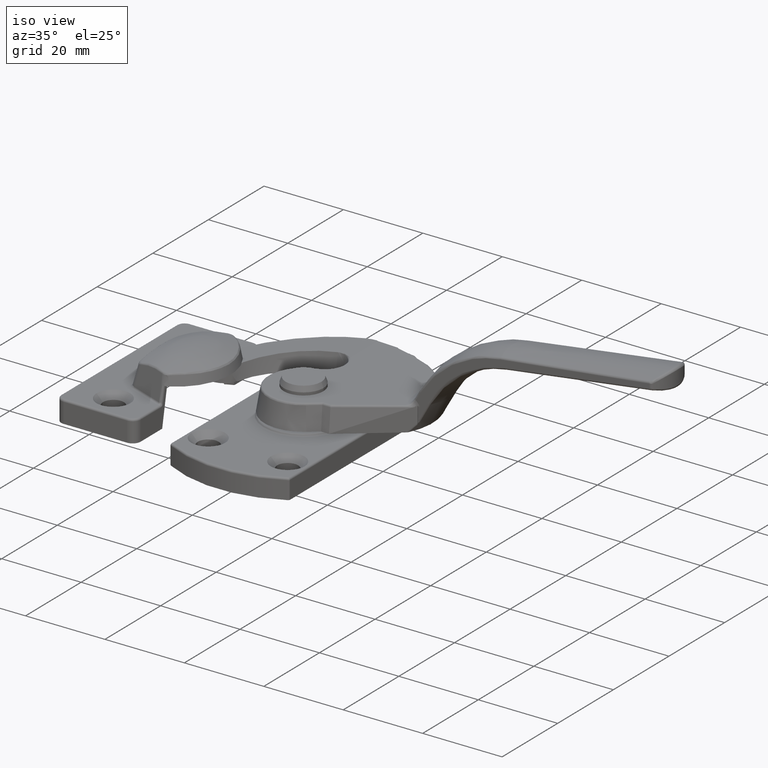
[diagram: clean part render]
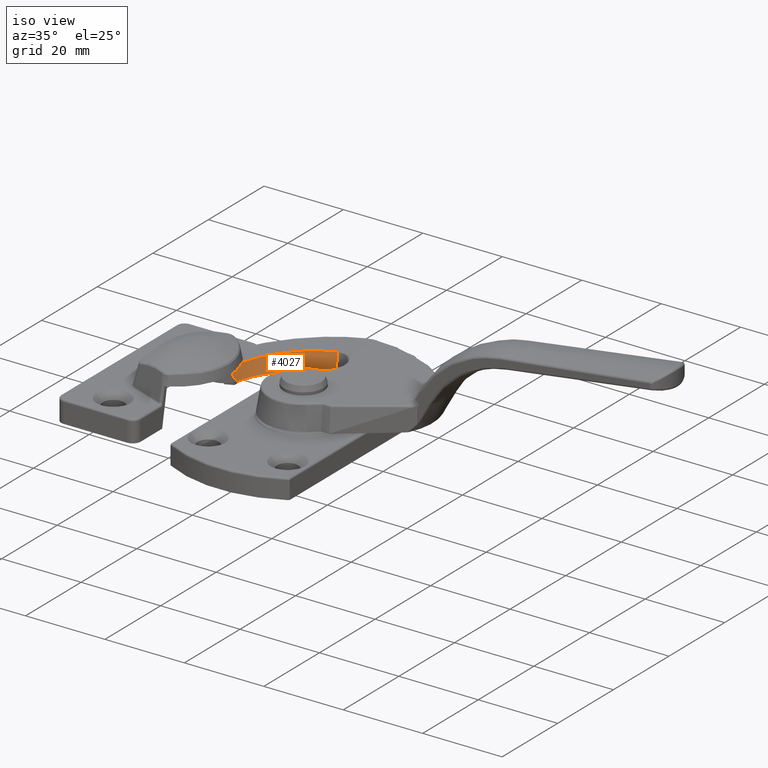
[diagram: same view with one face highlighted and labeled with its STEP entity id]
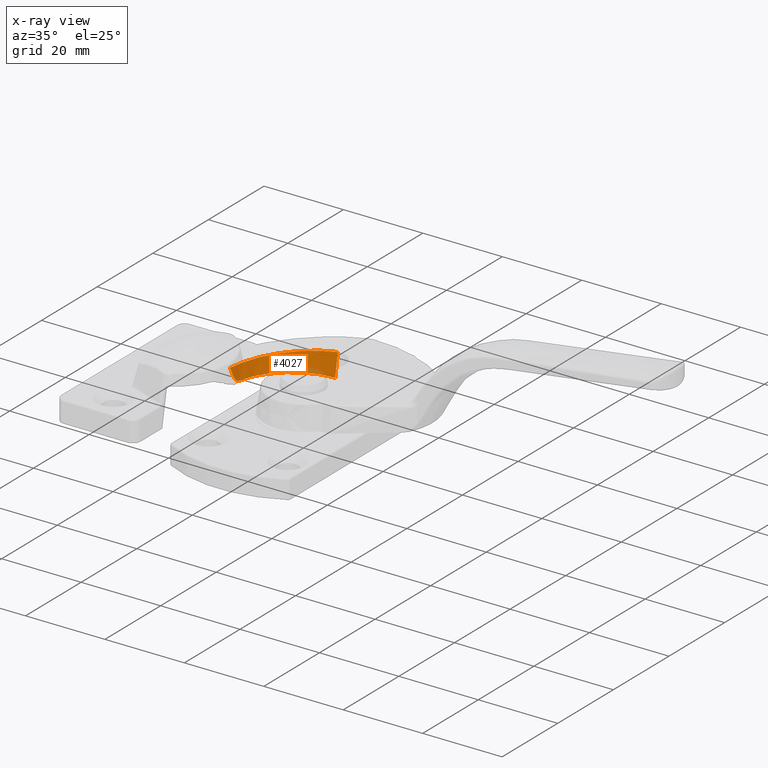
[diagram: x-ray of the same camera — body ghosted, the highlighted face saturated]
A machine part, iso view. The second image highlights one B-rep face of the part: STEP entity #4027.
The next image is the same camera in x-ray: the body ghosted, the highlighted face saturated — about 8% of this face is hidden behind the body in this view.
In plain terms, the highlighted conical surface has half-angle 9.462 deg.
Its self-contained STEP definition (entity closure, byte-faithful):
#73=ELLIPSE('',#4487,17.3315477485012,17.1939788527622);
#108=CONICAL_SURFACE('',#4497,16.7677819164027,0.165148677414627);
#423=LINE('',#8907,#612);
#612=VECTOR('',#5584,5.56173642420756);
#974=FACE_OUTER_BOUND('',#1281,.T.);
#1281=EDGE_LOOP('',(#3701,#3702,#3703,#3704));
#1520=CIRCLE('',#4460,16.2677819164029);
#1643=B_SPLINE_CURVE_WITH_KNOTS('',3,(#8963,#8964,#8965,#8966,#8967,#8968,
#8969,#8970,#8971,#8972,#8973,#8974),.UNSPECIFIED.,.F.,.F.,(4,2,2,2,2,4),
(1.25071072981699,1.40665381115737,1.49705784382476,1.58746187649215,1.6190591739658,
1.65065647143946),.UNSPECIFIED.);
#1985=VERTEX_POINT('',#8812);
#1986=VERTEX_POINT('',#8814);
#1996=VERTEX_POINT('',#8905);
#1999=VERTEX_POINT('',#8930);
#2534=EDGE_CURVE('',#1986,#1985,#1520,.T.);
#2559=EDGE_CURVE('',#1985,#1996,#423,.T.);
#2563=EDGE_CURVE('',#1996,#1999,#73,.T.);
#2571=EDGE_CURVE('',#1999,#1986,#1643,.T.);
#3701=ORIENTED_EDGE('',*,*,#2563,.T.);
#3702=ORIENTED_EDGE('',*,*,#2571,.T.);
#3703=ORIENTED_EDGE('',*,*,#2534,.T.);
#3704=ORIENTED_EDGE('',*,*,#2559,.T.);
#4027=ADVANCED_FACE('',(#974),#108,.F.);
#4460=AXIS2_PLACEMENT_3D('',#8815,#5526,#5527);
#4487=AXIS2_PLACEMENT_3D('',#8932,#5591,#5592);
#4497=AXIS2_PLACEMENT_3D('',#8975,#5615,#5616);
#5526=DIRECTION('center_axis',(0.,0.,-1.));
#5527=DIRECTION('ref_axis',(0.,-1.,0.));
#5584=DIRECTION('',(-0.0037298590908081,0.164356670622734,0.986393923832144));
#5591=DIRECTION('center_axis',(-0.124034734589208,0.,0.992277876713668));
#5592=DIRECTION('ref_axis',(0.992277876713668,8.96810981356025E-15,0.124034734589208));
#5615=DIRECTION('center_axis',(0.,0.,1.));
#5616=DIRECTION('ref_axis',(-0.677745473840718,0.735296588247505,0.));
#8812=CARTESIAN_POINT('',(-4.09075138848344,17.2587780815873,0.));
#8814=CARTESIAN_POINT('',(-19.6013838884,4.52724089894878,0.));
#8815=CARTESIAN_POINT('Origin',(-3.7216704393686,0.995183530177721,0.));
#8905=CARTESIAN_POINT('',(-4.11149588164596,18.1728865631512,5.48606301479426));
#8907=CARTESIAN_POINT('',(-4.11343923560431,18.2585206792558,6.));
#8930=CARTESIAN_POINT('',(-20.4717831187513,2.74522753587879,3.44102711091844));
#8932=CARTESIAN_POINT('Origin',(-3.36338478520101,0.995183530177721,5.57957690184988));
#8963=CARTESIAN_POINT('Ctrl Pts',(-20.4717831183373,2.74522753696701,3.44102711125094));
#8964=CARTESIAN_POINT('Ctrl Pts',(-20.3734817204037,2.86437001811884,2.92869514218829));
#8965=CARTESIAN_POINT('Ctrl Pts',(-20.2743758612383,2.99673886703702,2.42769273475957));
#8966=CARTESIAN_POINT('Ctrl Pts',(-20.1127221917452,3.24891086864881,1.6631168601236));
#8967=CARTESIAN_POINT('Ctrl Pts',(-20.0460633796749,3.36046558219157,1.3587381352436));
#8968=CARTESIAN_POINT('Ctrl Pts',(-19.9071011795736,3.6286170278971,0.779160961158127));
#8969=CARTESIAN_POINT('Ctrl Pts',(-19.8353209888638,3.78182735235631,0.502276578051903));
#8970=CARTESIAN_POINT('Ctrl Pts',(-19.736351918264,4.05049021072841,0.21347426581473));
#8971=CARTESIAN_POINT('Ctrl Pts',(-19.707615588652,4.1342785095991,0.13898877590775));
#8972=CARTESIAN_POINT('Ctrl Pts',(-19.6515624991186,4.32092730819068,0.0316935367758864));
#8973=CARTESIAN_POINT('Ctrl Pts',(-19.624251883547,4.42442908923723,-5.2486646140452E-14));
#8974=CARTESIAN_POINT('Ctrl Pts',(-19.6013838884,4.52724089894878,-5.27355936696949E-14));
#8975=CARTESIAN_POINT('Origin',(-3.7216704393686,0.995183530177721,3.));